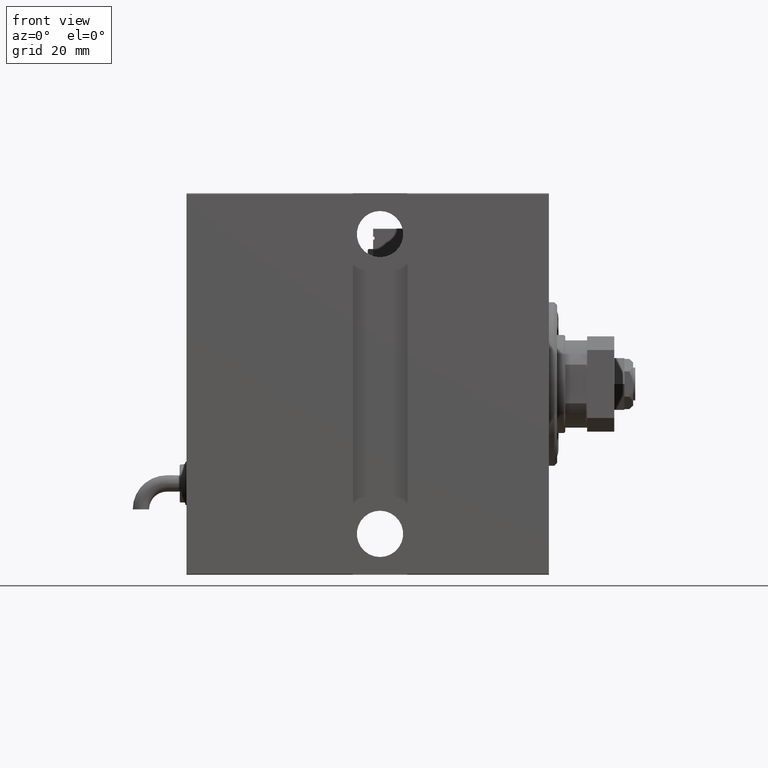
[diagram: clean part render]
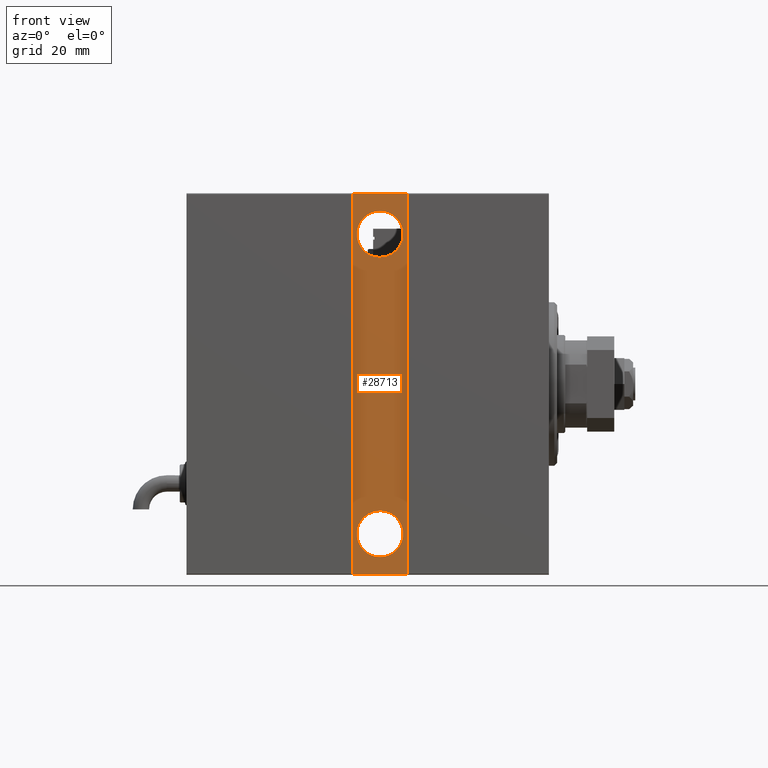
[diagram: same view with one face highlighted and labeled with its STEP entity id]
A machine part, front view. The second image highlights one B-rep face of the part: STEP entity #28713.
In plain terms, the highlighted planar face has unit normal (0, 1, 0).
Its self-contained STEP definition (entity closure, byte-faithful):
#1724 = DIRECTION ( 'NONE',  ( 1.486905836551547353E-16, 0.000000000000000000, 1.000000000000000000 ) ) ;
#2183 = ORIENTED_EDGE ( 'NONE', *, *, #10694, .T. ) ;
#3716 = ORIENTED_EDGE ( 'NONE', *, *, #20971, .T. ) ;
#4725 = DIRECTION ( 'NONE',  ( 0.000000000000000000, 0.000000000000000000, -1.000000000000000000 ) ) ;
#5943 = CARTESIAN_POINT ( 'NONE',  ( 62.00000000000002132, 50.00000000000000711, 63.50000000000001421 ) ) ;
#6068 = CARTESIAN_POINT ( 'NONE',  ( 62.00000000000002132, 50.00000000000000711, -63.50000000000001421 ) ) ;
#6178 = CARTESIAN_POINT ( 'NONE',  ( 51.99999999999999289, 50.00000000000000711, -70.00000000000001421 ) ) ;
#6336 = CARTESIAN_POINT ( 'NONE',  ( 0.000000000000000000, 50.00000000000000711, 0.000000000000000000 ) ) ;
#6991 = EDGE_CURVE ( 'NONE', #30670, #37526, #28561, .T. ) ;
#7217 = ORIENTED_EDGE ( 'NONE', *, *, #15505, .T. ) ;
#7262 = VERTEX_POINT ( 'NONE', #46597 ) ;
#7526 = DIRECTION ( 'NONE',  ( 0.000000000000000000, 0.000000000000000000, -1.000000000000000000 ) ) ;
#9835 = CARTESIAN_POINT ( 'NONE',  ( 72.00000000000002842, 50.00000000000001421, -70.00000000000001421 ) ) ;
#10347 = AXIS2_PLACEMENT_3D ( 'NONE', #57616, #34786, #25604 ) ;
#10694 = EDGE_CURVE ( 'NONE', #37526, #30670, #56261, .T. ) ;
#11075 = FACE_BOUND ( 'NONE', #57690, .T. ) ;
#11457 = CARTESIAN_POINT ( 'NONE',  ( 72.00000000000001421, 50.00000000000000711, -70.00000000000001421 ) ) ;
#13321 = DIRECTION ( 'NONE',  ( 0.000000000000000000, -1.000000000000000000, 0.000000000000000000 ) ) ;
#13494 = DIRECTION ( 'NONE',  ( -9.912705577010315689E-17, -0.000000000000000000, -1.000000000000000000 ) ) ;
#14107 = ORIENTED_EDGE ( 'NONE', *, *, #44695, .T. ) ;
#15378 = DIRECTION ( 'NONE',  ( 0.000000000000000000, 0.000000000000000000, -1.000000000000000000 ) ) ;
#15505 = EDGE_CURVE ( 'NONE', #53837, #19773, #39301, .T. ) ;
#15513 = FACE_OUTER_BOUND ( 'NONE', #55640, .T. ) ;
#15669 = DIRECTION ( 'NONE',  ( 0.000000000000000000, -1.000000000000000000, 0.000000000000000000 ) ) ;
#16029 = ORIENTED_EDGE ( 'NONE', *, *, #6991, .T. ) ;
#16412 = DIRECTION ( 'NONE',  ( 0.000000000000000000, -1.000000000000000000, 0.000000000000000000 ) ) ;
#18199 = VERTEX_POINT ( 'NONE', #44055 ) ;
#18827 = CARTESIAN_POINT ( 'NONE',  ( 72.00000000000001421, 50.00000000000000711, -70.00000000000001421 ) ) ;
#19569 = ORIENTED_EDGE ( 'NONE', *, *, #33700, .T. ) ;
#19667 = CIRCLE ( 'NONE', #30062, 8.500000000000007105 ) ;
#19773 = VERTEX_POINT ( 'NONE', #39767 ) ;
#19788 = CIRCLE ( 'NONE', #10347, 8.500000000000007105 ) ;
#19969 = PLANE ( 'NONE',  #50046 ) ;
#20971 = EDGE_CURVE ( 'NONE', #7262, #53837, #41334, .T. ) ;
#24372 = ORIENTED_EDGE ( 'NONE', *, *, #30125, .T. ) ;
#25604 = DIRECTION ( 'NONE',  ( 0.000000000000000000, 0.000000000000000000, -1.000000000000000000 ) ) ;
#26812 = CARTESIAN_POINT ( 'NONE',  ( 62.00000000000002132, 50.00000000000000711, 46.50000000000000000 ) ) ;
#28548 = FACE_BOUND ( 'NONE', #41812, .T. ) ;
#28561 = CIRCLE ( 'NONE', #42790, 8.500000000000007105 ) ;
#28713 = ADVANCED_FACE ( 'NONE', ( #28548, #11075, #15513 ), #19969, .F. ) ;
#30062 = AXIS2_PLACEMENT_3D ( 'NONE', #37912, #15669, #15378 ) ;
#30125 = EDGE_CURVE ( 'NONE', #36106, #18199, #19667, .T. ) ;
#30408 = LINE ( 'NONE', #44046, #52245 ) ;
#30670 = VERTEX_POINT ( 'NONE', #26812 ) ;
#33700 = EDGE_CURVE ( 'NONE', #18199, #36106, #19788, .T. ) ;
#34163 = DIRECTION ( 'NONE',  ( 0.000000000000000000, -1.000000000000000000, 0.000000000000000000 ) ) ;
#34786 = DIRECTION ( 'NONE',  ( 0.000000000000000000, -1.000000000000000000, 0.000000000000000000 ) ) ;
#36106 = VERTEX_POINT ( 'NONE', #6068 ) ;
#37011 = CARTESIAN_POINT ( 'NONE',  ( 62.00000000000002132, 50.00000000000000711, 55.00000000000000711 ) ) ;
#37526 = VERTEX_POINT ( 'NONE', #5943 ) ;
#37912 = CARTESIAN_POINT ( 'NONE',  ( 62.00000000000002132, 50.00000000000000711, -55.00000000000000711 ) ) ;
#38919 = VERTEX_POINT ( 'NONE', #46177 ) ;
#39301 = LINE ( 'NONE', #11457, #55370 ) ;
#39767 = CARTESIAN_POINT ( 'NONE',  ( 51.99999999999999289, 50.00000000000000711, -70.00000000000001421 ) ) ;
#41334 = LINE ( 'NONE', #18827, #41355 ) ;
#41355 = VECTOR ( 'NONE', #13494, 1000.000000000000000 ) ;
#41812 = EDGE_LOOP ( 'NONE', ( #2183, #16029 ) ) ;
#42605 = LINE ( 'NONE', #6178, #52441 ) ;
#42790 = AXIS2_PLACEMENT_3D ( 'NONE', #56439, #16412, #7526 ) ;
#44046 = CARTESIAN_POINT ( 'NONE',  ( 72.00000000000002842, 50.00000000000000711, 70.00000000000012790 ) ) ;
#44055 = CARTESIAN_POINT ( 'NONE',  ( 62.00000000000002132, 50.00000000000000711, -46.50000000000000000 ) ) ;
#44618 = DIRECTION ( 'NONE',  ( 1.000000000000000000, -0.000000000000000000, -0.000000000000000000 ) ) ;
#44695 = EDGE_CURVE ( 'NONE', #19773, #38919, #42605, .T. ) ;
#45447 = ORIENTED_EDGE ( 'NONE', *, *, #56159, .T. ) ;
#46177 = CARTESIAN_POINT ( 'NONE',  ( 52.00000000000001421, 50.00000000000000711, 70.00000000000012790 ) ) ;
#46597 = CARTESIAN_POINT ( 'NONE',  ( 72.00000000000002842, 50.00000000000000711, 70.00000000000012790 ) ) ;
#46830 = AXIS2_PLACEMENT_3D ( 'NONE', #37011, #13321, #4725 ) ;
#50046 = AXIS2_PLACEMENT_3D ( 'NONE', #6336, #34163, #55823 ) ;
#52245 = VECTOR ( 'NONE', #44618, 1000.000000000000000 ) ;
#52441 = VECTOR ( 'NONE', #1724, 1000.000000000000000 ) ;
#53837 = VERTEX_POINT ( 'NONE', #9835 ) ;
#55370 = VECTOR ( 'NONE', #57378, 1000.000000000000000 ) ;
#55640 = EDGE_LOOP ( 'NONE', ( #14107, #45447, #3716, #7217 ) ) ;
#55823 = DIRECTION ( 'NONE',  ( 0.000000000000000000, -0.000000000000000000, -1.000000000000000000 ) ) ;
#56159 = EDGE_CURVE ( 'NONE', #38919, #7262, #30408, .T. ) ;
#56261 = CIRCLE ( 'NONE', #46830, 8.500000000000007105 ) ;
#56439 = CARTESIAN_POINT ( 'NONE',  ( 62.00000000000002132, 50.00000000000000711, 55.00000000000000711 ) ) ;
#57378 = DIRECTION ( 'NONE',  ( -1.000000000000000000, 0.000000000000000000, 0.000000000000000000 ) ) ;
#57616 = CARTESIAN_POINT ( 'NONE',  ( 62.00000000000002132, 50.00000000000000711, -55.00000000000000711 ) ) ;
#57690 = EDGE_LOOP ( 'NONE', ( #19569, #24372 ) ) ;